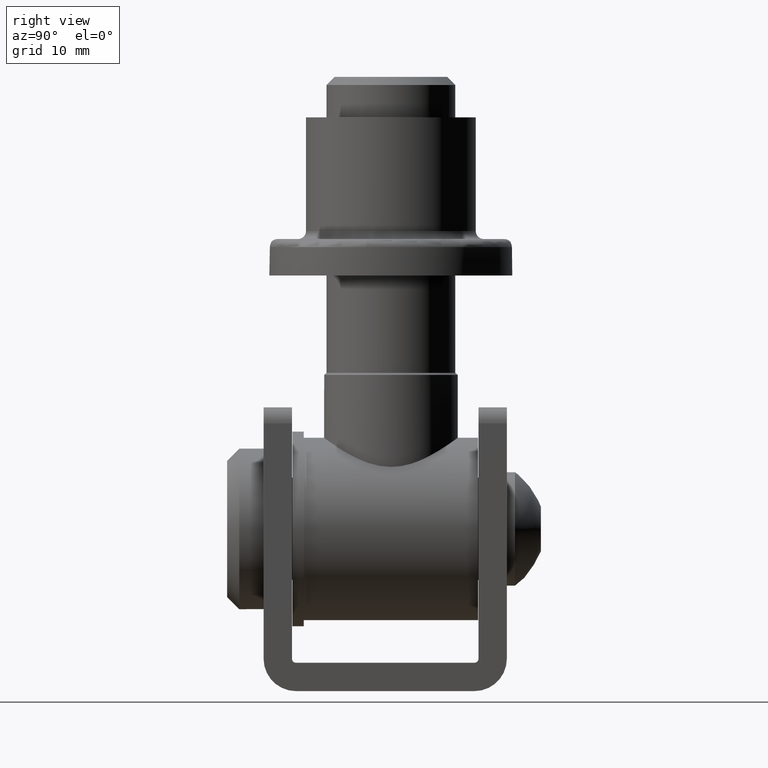
[diagram: clean part render]
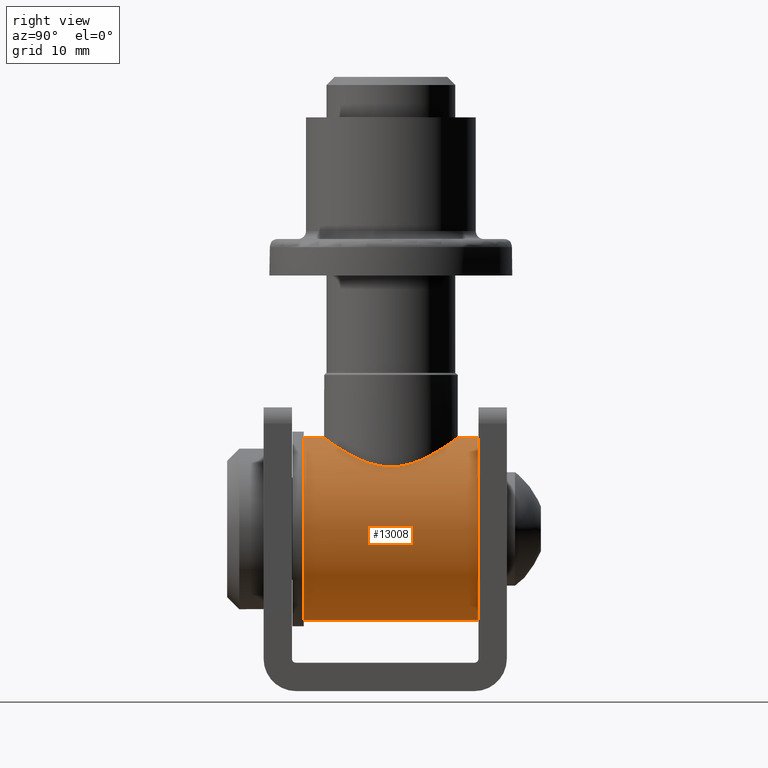
[diagram: same view with one face highlighted and labeled with its STEP entity id]
A machine part, right view. The second image highlights one B-rep face of the part: STEP entity #13008.
In plain terms, the highlighted cylindrical surface (bore or boss wall) has radius 11.25 mm, axis along (-0, -1, 0).
Its self-contained STEP definition (entity closure, byte-faithful):
#129 = CARTESIAN_POINT ( 'NONE',  ( 0.000000000000000000, 10.75000000000000000, 11.25000000000000178 ) ) ;
#410 = FACE_OUTER_BOUND ( 'NONE', #10392, .T. ) ;
#442 = CARTESIAN_POINT ( 'NONE',  ( 6.556875319766524157, 5.033559001384725562, -9.148873832056070299 ) ) ;
#530 = CARTESIAN_POINT ( 'NONE',  ( 8.249755051165518438, 0.2881484481616599647, -7.648793481481773071 ) ) ;
#575 = B_SPLINE_CURVE_WITH_KNOTS ( 'NONE', 3,
 ( #1525, #11306, #1660, #1567, #4808, #4770, #3846, #11260, #13633, #9123, #12399, #5894, #2652, #6975, #442, #8057, #2600, #12440, #10311, #3757, #1612, #5943, #13537, #7022, #530, #12348, #5846, #10360, #9266, #13590, #8107, #9219, #10219, #13443, #2704, #8012, #11400, #11444, #4907, #12536, #9071, #576, #12489, #5987, #2752, #7068, #7117, #625, #1477, #2556, #10174, #12628, #6271, #8343, #6127, #3992, #9410, #673, #6174, #5191, #10459, #5141, #13681, #12731, #2890, #7354, #11497, #811, #8246, #4045, #9317, #1855, #13732, #11685, #10508, #10411, #1711, #8396, #12585, #1901, #12781, #7162, #7208, #716, #4996, #3945, #1753, #11634, #5049, #13784, #11542, #8198, #13877, #1805, #7309, #3898, #13821, #2796 ),
 .UNSPECIFIED., .T., .F.,
 ( 4, 2, 2, 2, 2, 2, 2, 2, 2, 2, 2, 2, 2, 2, 2, 2, 2, 2, 2, 2, 2, 2, 2, 2, 2, 2, 2, 2, 2, 2, 2, 2, 2, 2, 2, 2, 2, 2, 2, 2, 2, 2, 2, 2, 2, 2, 2, 2, 4 ),
 ( 0.000000000000000000, 0.001683021897182275777, 0.002524532845773413883, 0.003366043794364551554, 0.004207554742955688792, 0.005049065691546828633, 0.006732087588729107445, 0.008415109485911387993, 0.01009813138309366594, 0.01093964233168480404, 0.01178115328027594562, 0.01262266422886708372, 0.01346417517745822530, 0.01430568612604936340, 0.01514719707464049978, 0.01683021897182277599, 0.01767172992041391236, 0.01851324086900505220, 0.02019626276618732841, 0.02187928466336960462, 0.02356230656055188083, 0.02524532845773415704, 0.02608683940632529341, 0.02692835035491642978, 0.02776986130350756615, 0.02861137225209870946, 0.03029439414928098220, 0.03113590509787212204, 0.03197741604646325841, 0.03366043794364553116, 0.03534345984082779002, 0.03618497078941892292, 0.03702648173801005582, 0.03786799268660118872, 0.03870950363519231469, 0.04039252553237458743, 0.04207554742955686017, 0.04291705837814799307, 0.04375856932673911903, 0.04460008027533025887, 0.04544159122392139177, 0.04712461312110365758, 0.04796612406969479048, 0.04880763501828592338, 0.05049065691546818918, 0.05133216786405931514, 0.05217367881265044804, 0.05301518976124158095, 0.05385670070983270691 ),
 .UNSPECIFIED. ) ;
#576 = CARTESIAN_POINT ( 'NONE',  ( 2.773629399411843277, -7.789101849871509664, -10.91540899481343097 ) ) ;
#604 = DIRECTION ( 'NONE',  ( 0.000000000000000000, 1.000000000000000000, 0.000000000000000000 ) ) ;
#625 = CARTESIAN_POINT ( 'NONE',  ( -0.2553341800638923575, -8.250829618315615122, -11.25060838538635899 ) ) ;
#673 = CARTESIAN_POINT ( 'NONE',  ( -5.081286246457512590, -6.520911382141687085, -10.04853072634297995 ) ) ;
#716 = CARTESIAN_POINT ( 'NONE',  ( -5.688980620930990106, 5.980362852015337793, -9.707897559837213919 ) ) ;
#811 = CARTESIAN_POINT ( 'NONE',  ( -7.949656461926976725, -2.222403552275423522, -7.961061223909100093 ) ) ;
#832 = ORIENTED_EDGE ( 'NONE', *, *, #9860, .F. ) ;
#1268 = CARTESIAN_POINT ( 'NONE',  ( 0.000000000000000000, -10.75000000000000000, 11.25000000000000178 ) ) ;
#1477 = CARTESIAN_POINT ( 'NONE',  ( -0.5358865779535668672, -8.237392550229598598, -11.24074176296833372 ) ) ;
#1525 = CARTESIAN_POINT ( 'NONE',  ( 6.776263578034402713E-16, 8.250000000000000000, -11.25000000000000178 ) ) ;
#1567 = CARTESIAN_POINT ( 'NONE',  ( 1.944541988724931336, 8.022384291964558045, -11.08409432439253806 ) ) ;
#1612 = CARTESIAN_POINT ( 'NONE',  ( 8.020905721753267770, 1.950272381775403296, -7.888857834221338905 ) ) ;
#1660 = CARTESIAN_POINT ( 'NONE',  ( 1.127274672420646162, 8.191539837442954664, -11.20693151423261114 ) ) ;
#1711 = CARTESIAN_POINT ( 'NONE',  ( -7.700593634494279804, 2.972140272162425489, -8.202620819562357113 ) ) ;
#1753 = CARTESIAN_POINT ( 'NONE',  ( -4.884084716458009012, 6.654165585336691890, -10.13733052956420799 ) ) ;
#1805 = CARTESIAN_POINT ( 'NONE',  ( -1.412637571476630161, 8.132926648922143897, -11.16436142530539932 ) ) ;
#1855 = CARTESIAN_POINT ( 'NONE',  ( -8.250626432928585885, 0.5617416111798783085, -7.647853576460329705 ) ) ;
#1901 = CARTESIAN_POINT ( 'NONE',  ( -7.129030527286492003, 4.160365068484034090, -8.704383697840174960 ) ) ;
#2285 = EDGE_CURVE ( 'NONE', #4641, #4641, #3662, .T. ) ;
#2556 = CARTESIAN_POINT ( 'NONE',  ( -1.096366072527595659, -8.181674149342496705, -11.19997460895253738 ) ) ;
#2600 = CARTESIAN_POINT ( 'NONE',  ( 7.382242711081392628, 3.721209052213139579, -8.493795713985209161 ) ) ;
#2652 = CARTESIAN_POINT ( 'NONE',  ( 5.495880261230067454, 6.174665182035264266, -9.825501017699318496 ) ) ;
#2673 = AXIS2_PLACEMENT_3D ( 'NONE', #10976, #9838, #7764 ) ;
#2704 = CARTESIAN_POINT ( 'NONE',  ( 6.996140458870018897, -4.379846357166402804, -8.811885219216231135 ) ) ;
#2752 = CARTESIAN_POINT ( 'NONE',  ( 1.150549487212015221, -8.174280547637211569, -11.19457230213053300 ) ) ;
#2796 = CARTESIAN_POINT ( 'NONE',  ( 6.776263578034402713E-16, 8.250000000000000000, -11.25000000000000178 ) ) ;
#2890 = CARTESIAN_POINT ( 'NONE',  ( -7.485695464606735072, -3.478083121615560547, -8.399206199966501529 ) ) ;
#3595 = CARTESIAN_POINT ( 'NONE',  ( 0.000000000000000000, -10.75000000000000000, 0.000000000000000000 ) ) ;
#3662 = CIRCLE ( 'NONE', #2673, 11.25000000000000178 ) ;
#3694 = EDGE_LOOP ( 'NONE', ( #832 ) ) ;
#3757 = CARTESIAN_POINT ( 'NONE',  ( 7.951863579906093271, 2.214551135317288200, -7.958855113883013033 ) ) ;
#3766 = VERTEX_POINT ( 'NONE', #12312 ) ;
#3790 = CYLINDRICAL_SURFACE ( 'NONE', #6322, 11.25000000000000178 ) ;
#3846 = CARTESIAN_POINT ( 'NONE',  ( 3.001758244937984710, 7.689310659993227048, -10.84526339806039807 ) ) ;
#3898 = CARTESIAN_POINT ( 'NONE',  ( -0.5713233634443281028, 8.235078131192265616, -11.23904407728343102 ) ) ;
#3945 = CARTESIAN_POINT ( 'NONE',  ( -5.094944846894911450, 6.494081264902805906, -10.03275585578482065 ) ) ;
#3992 = CARTESIAN_POINT ( 'NONE',  ( -4.199614234093319354, -7.106177662211650592, -10.43977896298243024 ) ) ;
#4045 = CARTESIAN_POINT ( 'NONE',  ( -8.189787603546911043, -1.139104048684250081, -7.714679233447846229 ) ) ;
#4562 = EDGE_CURVE ( 'NONE', #5986, #5986, #8746, .T. ) ;
#4641 = VERTEX_POINT ( 'NONE', #129 ) ;
#4770 = CARTESIAN_POINT ( 'NONE',  ( 2.744976311479055298, 7.784909504561733584, -10.91335999685082925 ) ) ;
#4808 = CARTESIAN_POINT ( 'NONE',  ( 2.214942031742457296, 7.951964709480135340, -11.03314792647436704 ) ) ;
#4907 = CARTESIAN_POINT ( 'NONE',  ( 5.108737016858627022, -6.499048748657802577, -10.03435899451152835 ) ) ;
#4996 = CARTESIAN_POINT ( 'NONE',  ( -5.497901557511126747, 6.156673852980952155, -9.817725373965311420 ) ) ;
#5049 = CARTESIAN_POINT ( 'NONE',  ( -3.765070746303329940, 7.361007889690967865, -10.61418482076226510 ) ) ;
#5141 = CARTESIAN_POINT ( 'NONE',  ( -6.982908126883496713, -4.401042687862812386, -8.822420465735397954 ) ) ;
#5191 = CARTESIAN_POINT ( 'NONE',  ( -6.219033967782208627, -5.445654003714959224, -9.384524897581574265 ) ) ;
#5500 = DIRECTION ( 'NONE',  ( -0.000000000000000000, -1.000000000000000000, -0.000000000000000000 ) ) ;
#5846 = CARTESIAN_POINT ( 'NONE',  ( 8.236156409424086888, -0.5540009502124909613, -7.663546384465392158 ) ) ;
#5894 = CARTESIAN_POINT ( 'NONE',  ( 5.096936894864301237, 6.508878322203798916, -10.04068561874819387 ) ) ;
#5943 = CARTESIAN_POINT ( 'NONE',  ( 8.133202222568197470, 1.410500821404213401, -7.773032106753539949 ) ) ;
#5986 = VERTEX_POINT ( 'NONE', #1268 ) ;
#5987 = CARTESIAN_POINT ( 'NONE',  ( 1.431092007686429302, -8.129717211348202355, -11.16202182229593731 ) ) ;
#5996 = FACE_BOUND ( 'NONE', #3694, .T. ) ;
#6127 = CARTESIAN_POINT ( 'NONE',  ( -3.728906713564033026, -7.364086868285310672, -10.61701461017487702 ) ) ;
#6174 = CARTESIAN_POINT ( 'NONE',  ( -5.488016963175180507, -6.181682686171066976, -9.829921711674959539 ) ) ;
#6271 = CARTESIAN_POINT ( 'NONE',  ( -2.727862679346886754, -7.805190018380718797, -10.92693107166355837 ) ) ;
#6322 = AXIS2_PLACEMENT_3D ( 'NONE', #10762, #5500, #12080 ) ;
#6975 = CARTESIAN_POINT ( 'NONE',  ( 6.225524573832323938, 5.438201332851404501, -9.380192635292658565 ) ) ;
#7022 = CARTESIAN_POINT ( 'NONE',  ( 8.235079920908050966, 0.5712128210995892630, -7.664710960987725308 ) ) ;
#7068 = CARTESIAN_POINT ( 'NONE',  ( 0.5875664967714697706, -8.233917184783654974, -11.23819286015432617 ) ) ;
#7117 = CARTESIAN_POINT ( 'NONE',  ( 0.3063923677081694663, -8.249091383358130969, -11.24933368257183197 ) ) ;
#7162 = CARTESIAN_POINT ( 'NONE',  ( -6.558610523613968901, 5.031545909154014673, -9.147687752987346599 ) ) ;
#7208 = CARTESIAN_POINT ( 'NONE',  ( -6.233520743081530036, 5.428874702361949467, -9.374797133594887200 ) ) ;
#7309 = CARTESIAN_POINT ( 'NONE',  ( -1.135456991734482557, 8.176408724640651826, -11.19612699002018097 ) ) ;
#7354 = CARTESIAN_POINT ( 'NONE',  ( -7.693438690145770309, -2.990601931161850580, -8.209342391407341566 ) ) ;
#7518 = ORIENTED_EDGE ( 'NONE', *, *, #4562, .T. ) ;
#7703 = DIRECTION ( 'NONE',  ( 0.000000000000000000, 0.000000000000000000, 1.000000000000000000 ) ) ;
#7764 = DIRECTION ( 'NONE',  ( 0.000000000000000000, 0.000000000000000000, 1.000000000000000000 ) ) ;
#8012 = CARTESIAN_POINT ( 'NONE',  ( 6.565223151009955238, -5.022597605615037430, -9.142841720436821973 ) ) ;
#8057 = CARTESIAN_POINT ( 'NONE',  ( 7.133534873718096136, 4.176363296557449090, -8.706732254944519411 ) ) ;
#8107 = CARTESIAN_POINT ( 'NONE',  ( 7.806820550663656100, -2.720420067433264144, -8.105269541410519807 ) ) ;
#8198 = CARTESIAN_POINT ( 'NONE',  ( -2.225814997067938172, 7.948878541007299070, -11.03092417978191087 ) ) ;
#8246 = CARTESIAN_POINT ( 'NONE',  ( -8.020139768458063756, -1.953657557155892732, -7.889642403870279708 ) ) ;
#8343 = CARTESIAN_POINT ( 'NONE',  ( -3.483448340694363488, -7.483516497129850009, -10.70033770580529975 ) ) ;
#8348 = ORIENTED_EDGE ( 'NONE', *, *, #2285, .F. ) ;
#8396 = CARTESIAN_POINT ( 'NONE',  ( -7.493923276508803966, 3.460328603878981557, -8.391855847125304635 ) ) ;
#8746 = CIRCLE ( 'NONE', #13517, 11.25000000000000178 ) ;
#9071 = CARTESIAN_POINT ( 'NONE',  ( 3.780010271447620251, -7.353546764705039429, -10.60899127707654266 ) ) ;
#9123 = CARTESIAN_POINT ( 'NONE',  ( 4.211284980448207094, 7.099246333419412913, -10.43506092524979145 ) ) ;
#9219 = CARTESIAN_POINT ( 'NONE',  ( 7.495266631559322157, -3.457547719876462811, -8.390668238235187815 ) ) ;
#9266 = CARTESIAN_POINT ( 'NONE',  ( 8.136386015948852801, -1.392316434101123823, -7.769696060474810650 ) ) ;
#9317 = CARTESIAN_POINT ( 'NONE',  ( -8.249363472159224386, -0.5799935152016878481, -7.649215853074229798 ) ) ;
#9410 = CARTESIAN_POINT ( 'NONE',  ( -4.426165692586635281, -6.967163774077289595, -10.34548414434739882 ) ) ;
#9838 = DIRECTION ( 'NONE',  ( 0.000000000000000000, 1.000000000000000000, 0.000000000000000000 ) ) ;
#9860 = EDGE_CURVE ( 'NONE', #3766, #3766, #575, .T. ) ;
#10174 = CARTESIAN_POINT ( 'NONE',  ( -1.378119996251619073, -8.138915044704139845, -11.16872627546255181 ) ) ;
#10219 = CARTESIAN_POINT ( 'NONE',  ( 7.379615951953947928, -3.697608705219756597, -8.492959820583291020 ) ) ;
#10311 = CARTESIAN_POINT ( 'NONE',  ( 7.788864775461299850, 2.733122140327830074, -8.118441637826613544 ) ) ;
#10360 = CARTESIAN_POINT ( 'NONE',  ( 8.179503419129591890, -1.112166026176464984, -7.723984684332135586 ) ) ;
#10392 = EDGE_LOOP ( 'NONE', ( #7518 ) ) ;
#10411 = CARTESIAN_POINT ( 'NONE',  ( -7.792964604711763776, 2.721327030402359792, -8.114494870021758288 ) ) ;
#10424 = FACE_OUTER_BOUND ( 'NONE', #12730, .T. ) ;
#10459 = CARTESIAN_POINT ( 'NONE',  ( -6.546157760251911206, -5.047875708992737742, -9.156678093543689556 ) ) ;
#10508 = CARTESIAN_POINT ( 'NONE',  ( -7.954732875871321163, 2.204119554430063133, -7.955975691229318691 ) ) ;
#10762 = CARTESIAN_POINT ( 'NONE',  ( 0.000000000000000000, 10.75000000000000000, 0.000000000000000000 ) ) ;
#10976 = CARTESIAN_POINT ( 'NONE',  ( 0.000000000000000000, 10.75000000000000000, 0.000000000000000000 ) ) ;
#11260 = CARTESIAN_POINT ( 'NONE',  ( 3.500274436165841774, 7.475568865207685931, -10.69478235430182700 ) ) ;
#11306 = CARTESIAN_POINT ( 'NONE',  ( 0.5702572009438910960, 8.249999999999996447, -11.25000000000000000 ) ) ;
#11400 = CARTESIAN_POINT ( 'NONE',  ( 6.240504900955214040, -5.421307701508094823, -9.370322682865721120 ) ) ;
#11444 = CARTESIAN_POINT ( 'NONE',  ( 5.508151782104982352, -6.163987553408158959, -9.818712366963781690 ) ) ;
#11497 = CARTESIAN_POINT ( 'NONE',  ( -7.786458062245598555, -2.739924498360179594, -8.120751474979204687 ) ) ;
#11542 = CARTESIAN_POINT ( 'NONE',  ( -2.752936639860178225, 7.782047437389101319, -10.91131891744463367 ) ) ;
#11634 = CARTESIAN_POINT ( 'NONE',  ( -4.230915498689255649, 7.102159295694697505, -10.43507878147758028 ) ) ;
#11685 = CARTESIAN_POINT ( 'NONE',  ( -8.024510212707422596, 1.935734961240749508, -7.885190540387297276 ) ) ;
#12080 = DIRECTION ( 'NONE',  ( 0.000000000000000000, 0.000000000000000000, -1.000000000000000000 ) ) ;
#12312 = CARTESIAN_POINT ( 'NONE',  ( 0.000000000000000000, 8.250000000000000000, -11.25000000000000178 ) ) ;
#12348 = CARTESIAN_POINT ( 'NONE',  ( 8.250238837439180628, -0.2739471803452432908, -7.648271651281688399 ) ) ;
#12399 = CARTESIAN_POINT ( 'NONE',  ( 4.439825374693618265, 6.958512148663501762, -10.33964984868530657 ) ) ;
#12440 = CARTESIAN_POINT ( 'NONE',  ( 7.694549497218456935, 2.987810084117130671, -8.208306847572897524 ) ) ;
#12489 = CARTESIAN_POINT ( 'NONE',  ( 2.249965231999468074, -7.956849975877021919, -11.03653833583212673 ) ) ;
#12536 = CARTESIAN_POINT ( 'NONE',  ( 4.245829043121244872, -7.092937634114679035, -10.42882975576570281 ) ) ;
#12585 = CARTESIAN_POINT ( 'NONE',  ( -7.379617074817605982, 3.697697336330458828, -8.492974958591899437 ) ) ;
#12628 = CARTESIAN_POINT ( 'NONE',  ( -2.202414449379097139, -7.970350174809506250, -11.04628969175944242 ) ) ;
#12730 = EDGE_LOOP ( 'NONE', ( #8348 ) ) ;
#12731 = CARTESIAN_POINT ( 'NONE',  ( -7.370963908600339565, -3.714879468765643455, -8.500490175364422640 ) ) ;
#12781 = CARTESIAN_POINT ( 'NONE',  ( -6.992727975929673434, 4.385383337149288963, -8.814619745701126163 ) ) ;
#13008 = ADVANCED_FACE ( 'NONE', ( #10424, #410, #5996 ), #3790, .T. ) ;
#13443 = CARTESIAN_POINT ( 'NONE',  ( 7.130324674379043159, -4.158065869270417103, -8.703307885529318000 ) ) ;
#13517 = AXIS2_PLACEMENT_3D ( 'NONE', #3595, #604, #7703 ) ;
#13537 = CARTESIAN_POINT ( 'NONE',  ( 8.176465037543934500, 1.135008757919156785, -7.727208739839373841 ) ) ;
#13590 = CARTESIAN_POINT ( 'NONE',  ( 7.968694944518685652, -2.206737567991922333, -7.942809199014262411 ) ) ;
#13633 = CARTESIAN_POINT ( 'NONE',  ( 3.742003507435280873, 7.357420026032202465, -10.61239027978926863 ) ) ;
#13681 = CARTESIAN_POINT ( 'NONE',  ( -7.119830049893989710, -4.176057766599005738, -8.711914957343331878 ) ) ;
#13732 = CARTESIAN_POINT ( 'NONE',  ( -8.192714751014593233, 1.118597776043610104, -7.711543364122658062 ) ) ;
#13784 = CARTESIAN_POINT ( 'NONE',  ( -3.013425554543353702, 7.684802544399922830, -10.84206210601642795 ) ) ;
#13821 = CARTESIAN_POINT ( 'NONE',  ( -0.2851286004719404410, 8.250000000000001776, -11.25000000000000355 ) ) ;
#13877 = CARTESIAN_POINT ( 'NONE',  ( -1.957817541833879904, 8.019163999943067722, -11.08176255909149965 ) ) ;